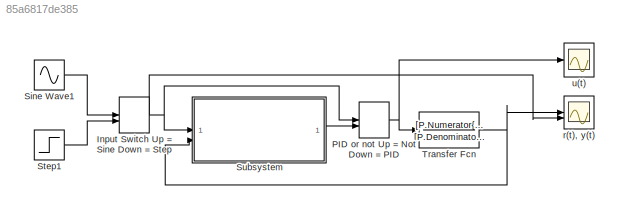
MODEL slx_85a6817de385
KIND model
CONFIG AbsTol = auto
CONFIG EnableMultiTasking = off
CONFIG FixedStep = auto
CONFIG MaxStep = auto
CONFIG MinStep = auto
CONFIG RelTol = 1e-3
CONFIG SampleTimeConstraint = Unconstrained
CONFIG SolverName = VariableStepAuto
CONFIG StartTime = 0.0
CONFIG StopTime = 10.0
BLOCK [ManualSwitch] Input Switch Up = Sine Down = Step
BLOCK [ManualSwitch] PID or not Up = Not Down = PID
  CurrentSetting = 0
BLOCK [Sin] Sine Wave1
  SampleTime = 0
BLOCK [Step] Step1
  SampleTime = 0
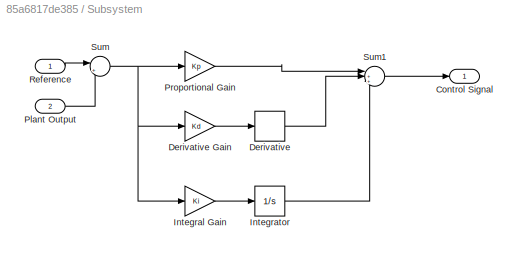
BLOCK [SubSystem] Subsystem
BLOCK [Outport] Subsystem/Control Signal
BLOCK [Derivative] Subsystem/Derivative
BLOCK [Gain] Subsystem/Derivative Gain
  Gain = Kd
BLOCK [Gain] Subsystem/Integral Gain
  Gain = Ki
BLOCK [Integrator] Subsystem/Integrator
BLOCK [Inport] Subsystem/Plant Output
  Port = 2
BLOCK [Gain] Subsystem/Proportional Gain
  Gain = Kp
BLOCK [Inport] Subsystem/Reference
BLOCK [Sum] Subsystem/Sum
  Inputs = |+-
BLOCK [Sum] Subsystem/Sum1
  Inputs = |+++
BLOCK [TransferFcn] Transfer Fcn
  Denominator = [P.Denominator{1}]
  Numerator = [P.Numerator{1}]
BLOCK [Scope] r(t), y(t)
  Floating = off
  NumInputPorts = 2
  ScopeSpecificationString = Simulink.scopes.TimeScopeBlockCfg('CurrentConfiguration', extmgr.ConfigurationSet(extmgr.Configuration('Core','General UI',true),extmgr.Configuration('Core','Source UI',true),extmgr.Configuration('Sources','WiredSimulink',true),extmgr.Configuration('Visuals','Time Domain',true,'SerializedDisplays',{struct('MinYLimReal','-1.27486','MaxYLimReal','1.27279','YLabelReal','','MinYLimMag','0.00000','MaxY...<+1441ch>
BLOCK [Scope] u(t)
  Floating = off
  NumInputPorts = 1
  ScopeSpecificationString = Simulink.scopes.TimeScopeBlockCfg('CurrentConfiguration', extmgr.ConfigurationSet(extmgr.Configuration('Core','General UI',true),extmgr.Configuration('Core','Source UI',true),extmgr.Configuration('Sources','WiredSimulink',true,'DataLoggingVariableName','ScopeData1'),extmgr.Configuration('Visuals','Time Domain',true,'SerializedDisplays',{struct('MinYLimReal','-0.08958','MaxYLimReal','0.0905','YLabe...<+1418ch>
NET Input Switch Up = Sine Down = Step:1 -> PID or not Up = Not Down = PID:1, Subsystem:1, r(t), y(t):2
NET PID or not Up = Not Down = PID:1 -> Transfer Fcn:1, u(t):1
LINE Sine Wave1:1 -> Input Switch Up = Sine Down = Step:1
LINE Step1:1 -> Input Switch Up = Sine Down = Step:2
LINE Subsystem/Derivative Gain:1 -> Subsystem/Derivative:1
LINE Subsystem/Derivative:1 -> Subsystem/Sum1:2
LINE Subsystem/Integral Gain:1 -> Subsystem/Integrator:1
LINE Subsystem/Integrator:1 -> Subsystem/Sum1:3
LINE Subsystem/Plant Output:1 -> Subsystem/Sum:2
LINE Subsystem/Proportional Gain:1 -> Subsystem/Sum1:1
LINE Subsystem/Reference:1 -> Subsystem/Sum:1
LINE Subsystem/Sum1:1 -> Subsystem/Control Signal:1
NET Subsystem/Sum:1 -> Subsystem/Derivative Gain:1, Subsystem/Integral Gain:1, Subsystem/Proportional Gain:1
LINE Subsystem:1 -> PID or not Up = Not Down = PID:2
NET Transfer Fcn:1 -> Subsystem:2, r(t), y(t):1
note: NET lines group one-source signal fan-out (src -> all destinations, sorted); 1:1 wires keep LINE
